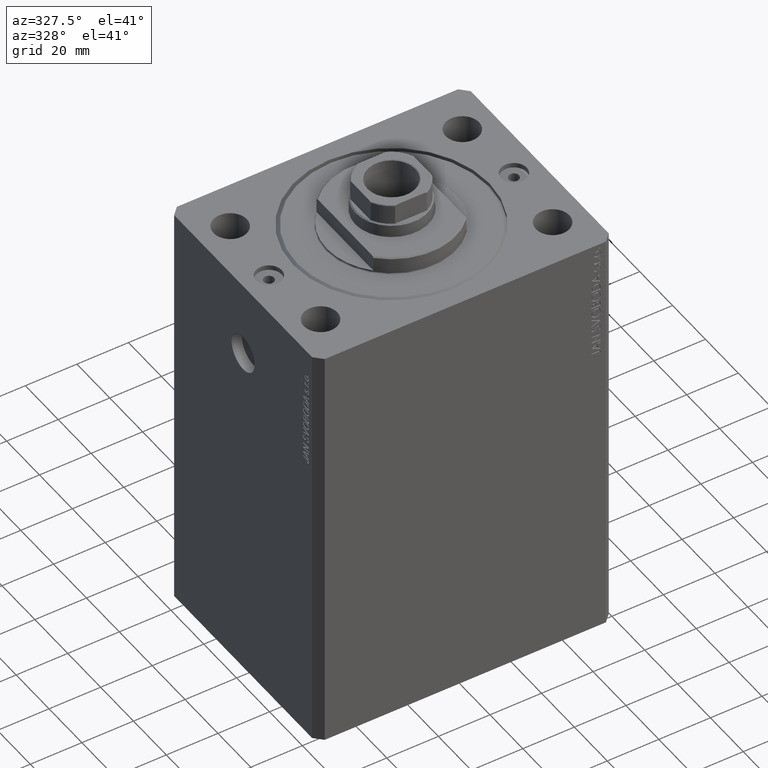
[diagram: clean part render]
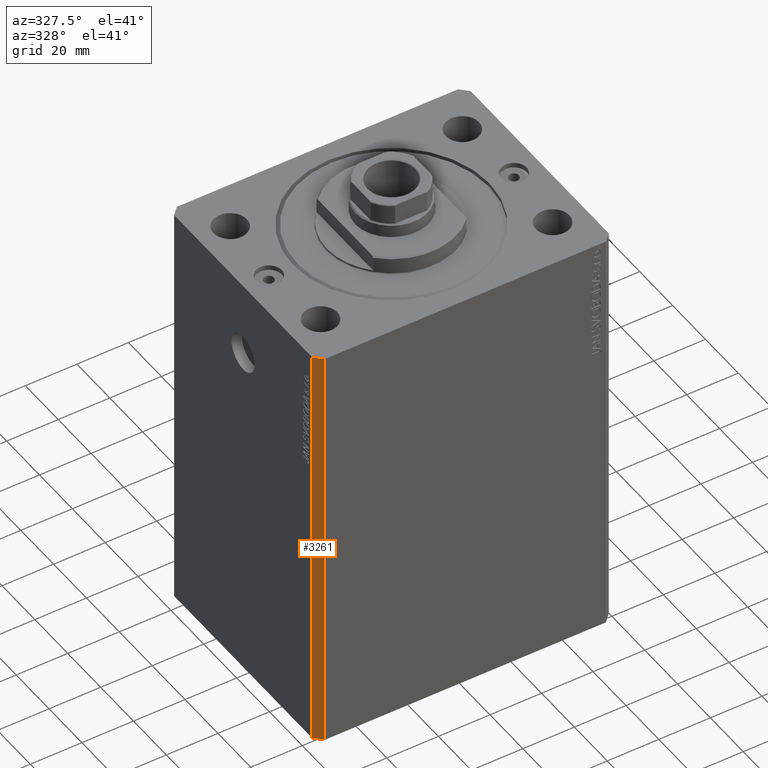
[diagram: same view with one face highlighted and labeled with its STEP entity id]
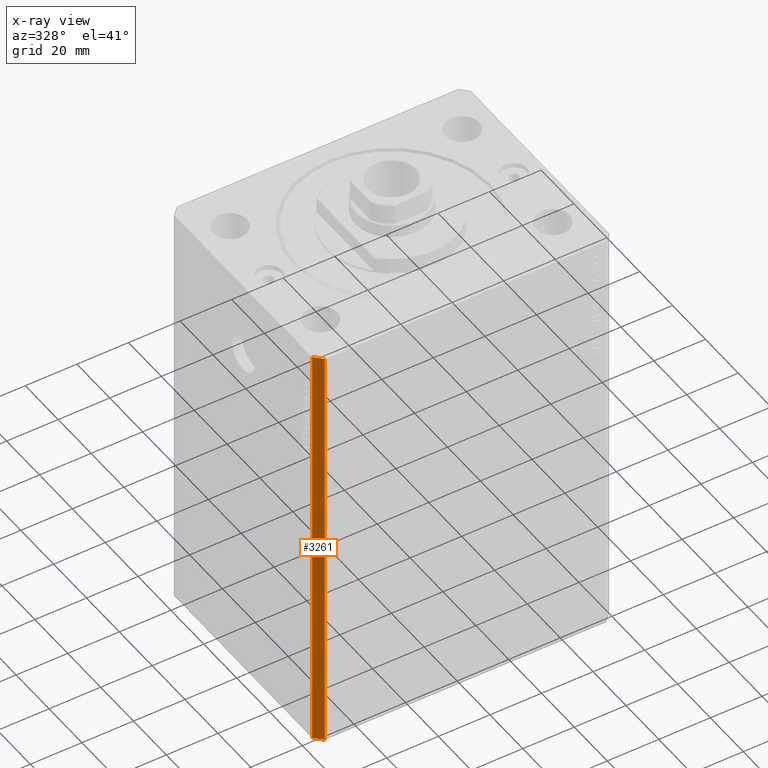
[diagram: x-ray of the same camera — body ghosted, the highlighted face saturated]
A machine part, auxiliary view. The second image highlights one B-rep face of the part: STEP entity #3261.
The next image is the same camera in x-ray: the body ghosted, the highlighted face saturated — about 0% of this face is hidden behind the body in this view.
In plain terms, the highlighted planar face has unit normal (-0.7071, -0.7071, 0).
Its self-contained STEP definition (entity closure, byte-faithful):
#115 = ORIENTED_EDGE ( 'NONE', *, *, #36953, .T. ) ;
#768 = VECTOR ( 'NONE', #4715, 1000.000000000000114 ) ;
#3261 = ADVANCED_FACE ( 'NONE', ( #9953 ), #8119, .T. ) ;
#4715 = DIRECTION ( 'NONE',  ( 0.7071067811865491270, -0.7071067811865459074, 0.000000000000000000 ) ) ;
#5586 = CARTESIAN_POINT ( 'NONE',  ( -54.50000000000000711, -45.00000000000000000, -165.0000000000000000 ) ) ;
#7095 = EDGE_LOOP ( 'NONE', ( #41104, #23019, #39645, #115 ) ) ;
#7814 = LINE ( 'NONE', #19241, #768 ) ;
#8119 = PLANE ( 'NONE',  #26343 ) ;
#8815 = DIRECTION ( 'NONE',  ( -0.7071067811865457964, -0.7071067811865492381, 0.000000000000000000 ) ) ;
#9517 = LINE ( 'NONE', #46341, #19783 ) ;
#9953 = FACE_OUTER_BOUND ( 'NONE', #7095, .T. ) ;
#10643 = VECTOR ( 'NONE', #30530, 1000.000000000000000 ) ;
#12855 = DIRECTION ( 'NONE',  ( 0.000000000000000000, 0.000000000000000000, 1.000000000000000000 ) ) ;
#13805 = CARTESIAN_POINT ( 'NONE',  ( -57.50000000000000711, -42.00000000000000711, -165.0000000000000000 ) ) ;
#14457 = EDGE_CURVE ( 'NONE', #14760, #46901, #26947, .T. ) ;
#14760 = VERTEX_POINT ( 'NONE', #13805 ) ;
#15731 = CARTESIAN_POINT ( 'NONE',  ( -54.50000000000000711, -45.00000000000000000, -165.0000000000000000 ) ) ;
#18854 = DIRECTION ( 'NONE',  ( 0.7071067811865492381, -0.7071067811865457964, 0.000000000000000000 ) ) ;
#19241 = CARTESIAN_POINT ( 'NONE',  ( -57.50000000000000711, -42.00000000000000711, -165.0000000000000000 ) ) ;
#19783 = VECTOR ( 'NONE', #20762, 1000.000000000000114 ) ;
#20762 = DIRECTION ( 'NONE',  ( 0.7071067811865491270, -0.7071067811865459074, 0.000000000000000000 ) ) ;
#21889 = CARTESIAN_POINT ( 'NONE',  ( -57.50000000000000711, -42.00000000000000711, 0.000000000000000000 ) ) ;
#23019 = ORIENTED_EDGE ( 'NONE', *, *, #14457, .F. ) ;
#26343 = AXIS2_PLACEMENT_3D ( 'NONE', #30099, #8815, #18854 ) ;
#26947 = LINE ( 'NONE', #34818, #10643 ) ;
#29836 = VERTEX_POINT ( 'NONE', #41323 ) ;
#30099 = CARTESIAN_POINT ( 'NONE',  ( -57.50000000000000711, -42.00000000000000711, -165.0000000000000000 ) ) ;
#30530 = DIRECTION ( 'NONE',  ( 0.000000000000000000, 0.000000000000000000, 1.000000000000000000 ) ) ;
#30556 = LINE ( 'NONE', #15731, #40402 ) ;
#34818 = CARTESIAN_POINT ( 'NONE',  ( -57.50000000000000711, -42.00000000000000711, -165.0000000000000000 ) ) ;
#36953 = EDGE_CURVE ( 'NONE', #41174, #29836, #30556, .T. ) ;
#37074 = EDGE_CURVE ( 'NONE', #46901, #29836, #9517, .T. ) ;
#39645 = ORIENTED_EDGE ( 'NONE', *, *, #40799, .T. ) ;
#40402 = VECTOR ( 'NONE', #12855, 1000.000000000000000 ) ;
#40799 = EDGE_CURVE ( 'NONE', #14760, #41174, #7814, .T. ) ;
#41104 = ORIENTED_EDGE ( 'NONE', *, *, #37074, .F. ) ;
#41174 = VERTEX_POINT ( 'NONE', #5586 ) ;
#41323 = CARTESIAN_POINT ( 'NONE',  ( -54.50000000000000711, -45.00000000000000000, 0.000000000000000000 ) ) ;
#46341 = CARTESIAN_POINT ( 'NONE',  ( -57.50000000000000711, -42.00000000000000711, 0.000000000000000000 ) ) ;
#46901 = VERTEX_POINT ( 'NONE', #21889 ) ;